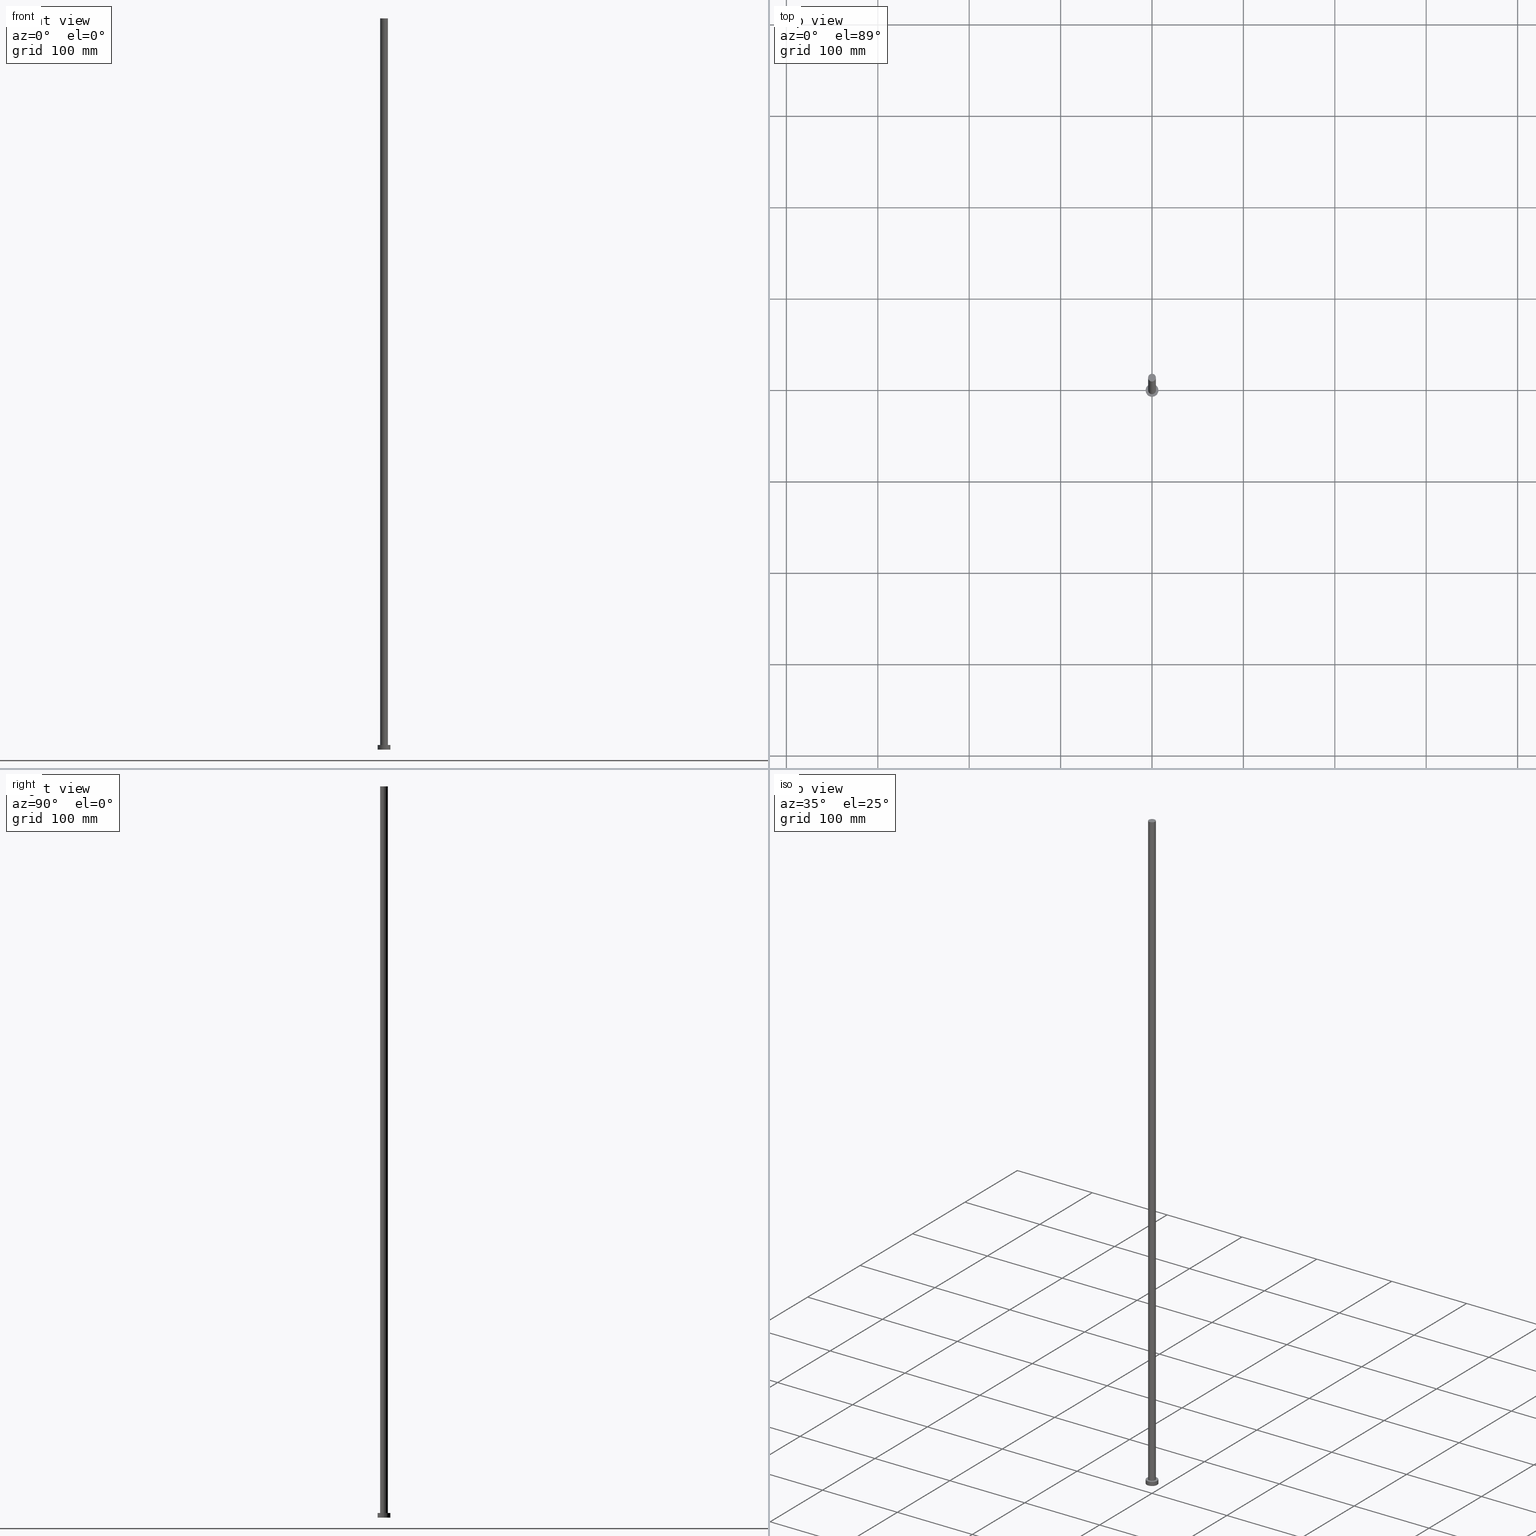
[diagram: canonical four-view strip — front | top / right | iso, engineering-drawing reading convention]
A machine part, canonical four-view strip (front | top / right | iso — engineering-drawing reading convention). The complete STEP part file that produces these views, byte-faithful:
ISO-10303-21;
HEADER;
FILE_DESCRIPTION (( 'STEP AP203' ),
    '1' );
FILE_NAME ('6261.STEP',
    '2023-02-12T11:36:54',
    ( '' ),
    ( '' ),
    'SwSTEP 2.0',
    'SolidWorks 2019',
    '' );
FILE_SCHEMA (( 'CONFIG_CONTROL_DESIGN' ));
ENDSEC;

DATA;
#1 = AXIS2_PLACEMENT_3D ( 'NONE', #227, #48, #77 ) ;
#2 = APPROVAL_DATE_TIME ( #175, #239 ) ;
#3 = ORIENTED_EDGE ( 'NONE', *, *, #217, .F. ) ;
#4 = APPROVAL_STATUS ( 'not_yet_approved' ) ;
#5 = ORIENTED_EDGE ( 'NONE', *, *, #217, .T. ) ;
#6 = VECTOR ( 'NONE', #124, 1000.000000000000000 ) ;
#7 = PERSON_AND_ORGANIZATION ( #113, #120 ) ;
#8 = EDGE_LOOP ( 'NONE', ( #66, #206 ) ) ;
#9 = CARTESIAN_POINT ( 'NONE',  ( 0.000000000000000000, 0.000000000000000000, 800.0000000000000000 ) ) ;
#10 = CARTESIAN_POINT ( 'NONE',  ( 0.000000000000000000, 0.000000000000000000, 800.0000000000000000 ) ) ;
#11 = CIRCLE ( 'NONE', #153, 4.250000000000000000 ) ;
#12 = DIRECTION ( 'NONE',  ( 1.000000000000000000, 0.000000000000000000, 0.000000000000000000 ) ) ;
#13 = DIRECTION ( 'NONE',  ( 0.000000000000000000, 0.000000000000000000, 1.000000000000000000 ) ) ;
#14 = DIRECTION ( 'NONE',  ( -1.000000000000000000, 0.000000000000000000, 0.000000000000000000 ) ) ;
#15 = CARTESIAN_POINT ( 'NONE',  ( -7.000000000000000000, 0.000000000000000000, 5.000000000000000000 ) ) ;
#16 = LOCAL_TIME ( 12, 36, 54.00000000000000000, #92 ) ;
#17 = CARTESIAN_POINT ( 'NONE',  ( 7.000000000000000000, 8.572527594031473190E-16, 0.000000000000000000 ) ) ;
#18 = AXIS2_PLACEMENT_3D ( 'NONE', #91, #156, #188 ) ;
#19 = ADVANCED_FACE ( 'NONE', ( #68 ), #204, .T. ) ;
#20 = COORDINATED_UNIVERSAL_TIME_OFFSET ( 1, 0, .AHEAD. ) ;
#21 = CALENDAR_DATE ( 2023, 12, 2 ) ;
#22 = VERTEX_POINT ( 'NONE', #247 ) ;
#23 = LOCAL_TIME ( 12, 36, 54.00000000000000000, #60 ) ;
#24 = CARTESIAN_POINT ( 'NONE',  ( 4.250000000000000000, 5.204748896376250699E-16, 5.000000000000000000 ) ) ;
#25 = VERTEX_POINT ( 'NONE', #24 ) ;
#26 = CARTESIAN_POINT ( 'NONE',  ( 0.000000000000000000, 0.000000000000000000, 0.000000000000000000 ) ) ;
#27 = CC_DESIGN_PERSON_AND_ORGANIZATION_ASSIGNMENT ( #72, #35, ( #82 ) ) ;
#28 = AXIS2_PLACEMENT_3D ( 'NONE', #73, #50, #112 ) ;
#29 = CYLINDRICAL_SURFACE ( 'NONE', #1, 4.250000000000000000 ) ;
#30 = VERTEX_POINT ( 'NONE', #225 ) ;
#31 = DIRECTION ( 'NONE',  ( 1.000000000000000000, 0.000000000000000000, 0.000000000000000000 ) ) ;
#32 = VECTOR ( 'NONE', #231, 1000.000000000000000 ) ;
#33 = EDGE_CURVE ( 'NONE', #137, #25, #172, .T. ) ;
#34 = CARTESIAN_POINT ( 'NONE',  ( 4.250000000000000000, 5.204748896376250699E-16, 800.0000000000000000 ) ) ;
#35 = PERSON_AND_ORGANIZATION_ROLE ( 'design_owner' ) ;
#36 = PRODUCT_DEFINITION ( 'NEZN�M�', '', #134, #213 ) ;
#37 = LINE ( 'NONE', #34, #32 ) ;
#38 =( GEOMETRIC_REPRESENTATION_CONTEXT ( 3 ) GLOBAL_UNCERTAINTY_ASSIGNED_CONTEXT ( ( #42 ) ) GLOBAL_UNIT_ASSIGNED_CONTEXT ( ( #210, #155, #191 ) ) REPRESENTATION_CONTEXT ( 'NONE', 'WORKASPACE' ) );
#39 = PERSON_AND_ORGANIZATION ( #113, #120 ) ;
#40 = APPROVAL_PERSON_ORGANIZATION ( #7, #239, #59 ) ;
#41 = VECTOR ( 'NONE', #95, 1000.000000000000000 ) ;
#42 = UNCERTAINTY_MEASURE_WITH_UNIT (LENGTH_MEASURE( 1.000000000000000082E-05 ), #210, 'distance_accuracy_value', 'NONE');
#43 = EDGE_CURVE ( 'NONE', #58, #242, #181, .T. ) ;
#44 = LOCAL_TIME ( 12, 36, 54.00000000000000000, #20 ) ;
#45 = FACE_BOUND ( 'NONE', #237, .T. ) ;
#46 = DIRECTION ( 'NONE',  ( 1.000000000000000000, 0.000000000000000000, -0.000000000000000000 ) ) ;
#47 = ORIENTED_EDGE ( 'NONE', *, *, #251, .T. ) ;
#48 = DIRECTION ( 'NONE',  ( -0.000000000000000000, -0.000000000000000000, -1.000000000000000000 ) ) ;
#49 = EDGE_LOOP ( 'NONE', ( #161, #81, #203, #141 ) ) ;
#50 = DIRECTION ( 'NONE',  ( -0.000000000000000000, -0.000000000000000000, -1.000000000000000000 ) ) ;
#51 = CARTESIAN_POINT ( 'NONE',  ( 0.000000000000000000, 0.000000000000000000, 0.000000000000000000 ) ) ;
#52 = AXIS2_PLACEMENT_3D ( 'NONE', #183, #71, #147 ) ;
#53 = DIRECTION ( 'NONE',  ( 1.000000000000000000, 0.000000000000000000, 0.000000000000000000 ) ) ;
#54 = EDGE_CURVE ( 'NONE', #242, #58, #79, .T. ) ;
#55 = APPROVAL_DATE_TIME ( #218, #248 ) ;
#56 = AXIS2_PLACEMENT_3D ( 'NONE', #64, #87, #169 ) ;
#57 = ADVANCED_FACE ( 'NONE', ( #168 ), #226, .F. ) ;
#58 = VERTEX_POINT ( 'NONE', #150 ) ;
#59 = APPROVAL_ROLE ( '' ) ;
#60 = COORDINATED_UNIVERSAL_TIME_OFFSET ( 1, 0, .AHEAD. ) ;
#61 = ORIENTED_EDGE ( 'NONE', *, *, #189, .F. ) ;
#62 = COORDINATED_UNIVERSAL_TIME_OFFSET ( 1, 0, .AHEAD. ) ;
#63 = CC_DESIGN_DATE_AND_TIME_ASSIGNMENT ( #142, #80, ( #36 ) ) ;
#64 = CARTESIAN_POINT ( 'NONE',  ( 0.000000000000000000, 0.000000000000000000, 5.000000000000000000 ) ) ;
#65 = LOCAL_TIME ( 12, 36, 54.00000000000000000, #62 ) ;
#66 = ORIENTED_EDGE ( 'NONE', *, *, #93, .T. ) ;
#67 = CC_DESIGN_DATE_AND_TIME_ASSIGNMENT ( #117, #178, ( #157 ) ) ;
#68 = FACE_OUTER_BOUND ( 'NONE', #8, .T. ) ;
#69 = FACE_OUTER_BOUND ( 'NONE', #49, .T. ) ;
#70 = CC_DESIGN_APPROVAL ( #248, ( #36 ) ) ;
#71 = DIRECTION ( 'NONE',  ( 0.000000000000000000, 0.000000000000000000, 1.000000000000000000 ) ) ;
#72 = PERSON_AND_ORGANIZATION ( #113, #120 ) ;
#73 = CARTESIAN_POINT ( 'NONE',  ( 0.000000000000000000, 0.000000000000000000, 5.000000000000000000 ) ) ;
#74 = CARTESIAN_POINT ( 'NONE',  ( 0.000000000000000000, 0.000000000000000000, 800.0000000000000000 ) ) ;
#75 = CIRCLE ( 'NONE', #125, 4.250000000000000000 ) ;
#76 = DIRECTION ( 'NONE',  ( 0.000000000000000000, 0.000000000000000000, 1.000000000000000000 ) ) ;
#77 = DIRECTION ( 'NONE',  ( -1.000000000000000000, 0.000000000000000000, 0.000000000000000000 ) ) ;
#78 = ORIENTED_EDGE ( 'NONE', *, *, #189, .T. ) ;
#79 = CIRCLE ( 'NONE', #52, 7.000000000000000000 ) ;
#80 = DATE_TIME_ROLE ( 'creation_date' ) ;
#81 = ORIENTED_EDGE ( 'NONE', *, *, #93, .F. ) ;
#82 = PRODUCT ( '6261', '6261', '', ( #232 ) ) ;
#83 = ORIENTED_EDGE ( 'NONE', *, *, #205, .F. ) ;
#84 = CARTESIAN_POINT ( 'NONE',  ( 0.000000000000000000, 0.000000000000000000, 800.0000000000000000 ) ) ;
#85 = AXIS2_PLACEMENT_3D ( 'NONE', #51, #254, #173 ) ;
#86 = CARTESIAN_POINT ( 'NONE',  ( -4.250000000000000000, 0.000000000000000000, 800.0000000000000000 ) ) ;
#87 = DIRECTION ( 'NONE',  ( 0.000000000000000000, 0.000000000000000000, 1.000000000000000000 ) ) ;
#88 = DIRECTION ( 'NONE',  ( 1.000000000000000000, 0.000000000000000000, -0.000000000000000000 ) ) ;
#89 = CC_DESIGN_PERSON_AND_ORGANIZATION_ASSIGNMENT ( #118, #199, ( #157 ) ) ;
#90 = AXIS2_PLACEMENT_3D ( 'NONE', #123, #13, #243 ) ;
#91 = CARTESIAN_POINT ( 'NONE',  ( 0.000000000000000000, 0.000000000000000000, 5.000000000000000000 ) ) ;
#92 = COORDINATED_UNIVERSAL_TIME_OFFSET ( 1, 0, .AHEAD. ) ;
#93 = EDGE_CURVE ( 'NONE', #30, #22, #11, .T. ) ;
#94 = CARTESIAN_POINT ( 'NONE',  ( -7.000000000000000000, 0.000000000000000000, 0.000000000000000000 ) ) ;
#95 = DIRECTION ( 'NONE',  ( -0.000000000000000000, -0.000000000000000000, -1.000000000000000000 ) ) ;
#96 = FACE_OUTER_BOUND ( 'NONE', #100, .T. ) ;
#97 = PERSON_AND_ORGANIZATION ( #113, #120 ) ;
#98 = CIRCLE ( 'NONE', #85, 7.000000000000000000 ) ;
#99 = ADVANCED_FACE ( 'NONE', ( #69 ), #224, .T. ) ;
#100 = EDGE_LOOP ( 'NONE', ( #143, #187, #78, #165 ) ) ;
#101 = ORIENTED_EDGE ( 'NONE', *, *, #174, .T. ) ;
#102 = ORIENTED_EDGE ( 'NONE', *, *, #184, .F. ) ;
#103 = EDGE_CURVE ( 'NONE', #242, #146, #207, .T. ) ;
#104 = ORIENTED_EDGE ( 'NONE', *, *, #251, .F. ) ;
#105 = DIRECTION ( 'NONE',  ( 1.000000000000000000, 0.000000000000000000, -0.000000000000000000 ) ) ;
#106 = DIRECTION ( 'NONE',  ( 0.000000000000000000, 0.000000000000000000, 1.000000000000000000 ) ) ;
#107 = DIRECTION ( 'NONE',  ( -0.000000000000000000, -0.000000000000000000, -1.000000000000000000 ) ) ;
#108 = ADVANCED_FACE ( 'NONE', ( #45, #209 ), #149, .T. ) ;
#109 = CLOSED_SHELL ( 'NONE', ( #122, #132, #211, #108, #57, #99, #19 ) ) ;
#110 = FACE_OUTER_BOUND ( 'NONE', #249, .T. ) ;
#111 = EDGE_CURVE ( 'NONE', #30, #137, #121, .T. ) ;
#112 = DIRECTION ( 'NONE',  ( -1.000000000000000000, 0.000000000000000000, 0.000000000000000000 ) ) ;
#113 = PERSON ( 'NEUR�EN�', 'NEUR�EN�', 'NEUR�EN�', ('NEUR�EN�'), ('NEUR�EN�'), ('NEUR�EN�') ) ;
#114 = CYLINDRICAL_SURFACE ( 'NONE', #18, 7.000000000000000000 ) ;
#115 = APPROVAL_PERSON_ORGANIZATION ( #230, #248, #214 ) ;
#116 = COORDINATED_UNIVERSAL_TIME_OFFSET ( 1, 0, .AHEAD. ) ;
#117 = DATE_AND_TIME ( #119, #65 ) ;
#118 = PERSON_AND_ORGANIZATION ( #113, #120 ) ;
#119 = CALENDAR_DATE ( 2023, 12, 2 ) ;
#120 = ORGANIZATION ( 'NEUR�EN�', 'NEUR�EN�', '' ) ;
#121 = LINE ( 'NONE', #86, #6 ) ;
#122 = ADVANCED_FACE ( 'NONE', ( #246 ), #29, .T. ) ;
#123 = CARTESIAN_POINT ( 'NONE',  ( 0.000000000000000000, 0.000000000000000000, 5.000000000000000000 ) ) ;
#124 = DIRECTION ( 'NONE',  ( -0.000000000000000000, -0.000000000000000000, -1.000000000000000000 ) ) ;
#125 = AXIS2_PLACEMENT_3D ( 'NONE', #234, #76, #53 ) ;
#126 = PRODUCT_RELATED_PRODUCT_CATEGORY ( 'detail', '', ( #82 ) ) ;
#127 = DIRECTION ( 'NONE',  ( 0.000000000000000000, 0.000000000000000000, 1.000000000000000000 ) ) ;
#128 = CARTESIAN_POINT ( 'NONE',  ( 7.000000000000000000, 8.572527594031473190E-16, 5.000000000000000000 ) ) ;
#129 = APPROVAL_STATUS ( 'not_yet_approved' ) ;
#130 = DIRECTION ( 'NONE',  ( 0.000000000000000000, 0.000000000000000000, 1.000000000000000000 ) ) ;
#131 = DIRECTION ( 'NONE',  ( 1.000000000000000000, 0.000000000000000000, 0.000000000000000000 ) ) ;
#132 = ADVANCED_FACE ( 'NONE', ( #96 ), #114, .T. ) ;
#133 = SECURITY_CLASSIFICATION_LEVEL ( 'unclassified' ) ;
#134 = PRODUCT_DEFINITION_FORMATION_WITH_SPECIFIED_SOURCE ( 'LIBOVOLN�', '', #82, .NOT_KNOWN. ) ;
#135 = APPROVAL_ROLE ( '' ) ;
#136 = CALENDAR_DATE ( 2023, 12, 2 ) ;
#137 = VERTEX_POINT ( 'NONE', #197 ) ;
#138 = CC_DESIGN_PERSON_AND_ORGANIZATION_ASSIGNMENT ( #236, #159, ( #36 ) ) ;
#139 = CALENDAR_DATE ( 2023, 12, 2 ) ;
#140 = APPROVAL_PERSON_ORGANIZATION ( #97, #228, #135 ) ;
#141 = ORIENTED_EDGE ( 'NONE', *, *, #33, .T. ) ;
#142 = DATE_AND_TIME ( #21, #145 ) ;
#143 = ORIENTED_EDGE ( 'NONE', *, *, #43, .F. ) ;
#144 = DIRECTION ( 'NONE',  ( 0.000000000000000000, 0.000000000000000000, 1.000000000000000000 ) ) ;
#145 = LOCAL_TIME ( 12, 36, 54.00000000000000000, #116 ) ;
#146 = VERTEX_POINT ( 'NONE', #94 ) ;
#147 = DIRECTION ( 'NONE',  ( 1.000000000000000000, 0.000000000000000000, 0.000000000000000000 ) ) ;
#148 = MANIFOLD_SOLID_BREP ( 'P�idat vysunut�m3', #109 ) ;
#149 = PLANE ( 'NONE',  #154 ) ;
#150 = CARTESIAN_POINT ( 'NONE',  ( 7.000000000000000000, 8.572527594031473190E-16, 5.000000000000000000 ) ) ;
#151 = APPLICATION_PROTOCOL_DEFINITION ( 'international standard', 'config_control_design', 1994, #193 ) ;
#152 = DIRECTION ( 'NONE',  ( 1.000000000000000000, 0.000000000000000000, 0.000000000000000000 ) ) ;
#153 = AXIS2_PLACEMENT_3D ( 'NONE', #10, #185, #12 ) ;
#154 = AXIS2_PLACEMENT_3D ( 'NONE', #167, #106, #88 ) ;
#155 =( NAMED_UNIT ( * ) PLANE_ANGLE_UNIT ( ) SI_UNIT ( $, .RADIAN. ) );
#156 = DIRECTION ( 'NONE',  ( -0.000000000000000000, -0.000000000000000000, -1.000000000000000000 ) ) ;
#157 = SECURITY_CLASSIFICATION ( '', '', #133 ) ;
#158 = ORIENTED_EDGE ( 'NONE', *, *, #33, .F. ) ;
#159 = PERSON_AND_ORGANIZATION_ROLE ( 'creator' ) ;
#160 = CC_DESIGN_PERSON_AND_ORGANIZATION_ASSIGNMENT ( #220, #162, ( #134 ) ) ;
#161 = ORIENTED_EDGE ( 'NONE', *, *, #174, .F. ) ;
#162 = PERSON_AND_ORGANIZATION_ROLE ( 'creator' ) ;
#163 = AXIS2_PLACEMENT_3D ( 'NONE', #171, #252, #131 ) ;
#164 = EDGE_LOOP ( 'NONE', ( #3, #61 ) ) ;
#165 = ORIENTED_EDGE ( 'NONE', *, *, #103, .F. ) ;
#166 = CARTESIAN_POINT ( 'NONE',  ( -7.000000000000000000, 0.000000000000000000, 5.000000000000000000 ) ) ;
#167 = CARTESIAN_POINT ( 'NONE',  ( 0.000000000000000000, 0.000000000000000000, 5.000000000000000000 ) ) ;
#168 = FACE_OUTER_BOUND ( 'NONE', #164, .T. ) ;
#169 = DIRECTION ( 'NONE',  ( 1.000000000000000000, 0.000000000000000000, 0.000000000000000000 ) ) ;
#170 = APPLICATION_PROTOCOL_DEFINITION ( 'international standard', 'config_control_design', 1994, #212 ) ;
#171 = CARTESIAN_POINT ( 'NONE',  ( 0.000000000000000000, 0.000000000000000000, 0.000000000000000000 ) ) ;
#172 = CIRCLE ( 'NONE', #90, 4.250000000000000000 ) ;
#173 = DIRECTION ( 'NONE',  ( 1.000000000000000000, 0.000000000000000000, 0.000000000000000000 ) ) ;
#174 = EDGE_CURVE ( 'NONE', #22, #25, #37, .T. ) ;
#175 = DATE_AND_TIME ( #139, #23 ) ;
#176 = CC_DESIGN_APPROVAL ( #239, ( #134 ) ) ;
#177 = ORIENTED_EDGE ( 'NONE', *, *, #111, .F. ) ;
#178 = DATE_TIME_ROLE ( 'classification_date' ) ;
#179 = PERSON_AND_ORGANIZATION_ROLE ( 'design_supplier' ) ;
#180 = VERTEX_POINT ( 'NONE', #17 ) ;
#181 = CIRCLE ( 'NONE', #56, 7.000000000000000000 ) ;
#182 = EDGE_LOOP ( 'NONE', ( #83, #101, #47, #177 ) ) ;
#183 = CARTESIAN_POINT ( 'NONE',  ( 0.000000000000000000, 0.000000000000000000, 5.000000000000000000 ) ) ;
#184 = EDGE_CURVE ( 'NONE', #58, #180, #195, .T. ) ;
#185 = DIRECTION ( 'NONE',  ( 0.000000000000000000, 0.000000000000000000, 1.000000000000000000 ) ) ;
#186 = ORIENTED_EDGE ( 'NONE', *, *, #43, .T. ) ;
#187 = ORIENTED_EDGE ( 'NONE', *, *, #184, .T. ) ;
#188 = DIRECTION ( 'NONE',  ( -1.000000000000000000, 0.000000000000000000, 0.000000000000000000 ) ) ;
#189 = EDGE_CURVE ( 'NONE', #180, #146, #98, .T. ) ;
#190 = CC_DESIGN_APPROVAL ( #228, ( #157 ) ) ;
#191 =( NAMED_UNIT ( * ) SI_UNIT ( $, .STERADIAN. ) SOLID_ANGLE_UNIT ( ) );
#192 = PRODUCT_DEFINITION_SHAPE ( 'NONE', 'NONE',  #36 ) ;
#193 = APPLICATION_CONTEXT ( 'configuration controlled 3d designs of mechanical parts and assemblies' ) ;
#194 = CC_DESIGN_PERSON_AND_ORGANIZATION_ASSIGNMENT ( #39, #179, ( #134 ) ) ;
#195 = LINE ( 'NONE', #128, #41 ) ;
#196 = VECTOR ( 'NONE', #245, 1000.000000000000000 ) ;
#197 = CARTESIAN_POINT ( 'NONE',  ( -4.250000000000000000, 0.000000000000000000, 5.000000000000000000 ) ) ;
#198 = APPROVAL_DATE_TIME ( #241, #228 ) ;
#199 = PERSON_AND_ORGANIZATION_ROLE ( 'classification_officer' ) ;
#200 = EDGE_LOOP ( 'NONE', ( #219, #186 ) ) ;
#201 = SHAPE_DEFINITION_REPRESENTATION ( #192, #222 ) ;
#202 = AXIS2_PLACEMENT_3D ( 'NONE', #9, #127, #46 ) ;
#203 = ORIENTED_EDGE ( 'NONE', *, *, #111, .T. ) ;
#204 = PLANE ( 'NONE',  #202 ) ;
#205 = EDGE_CURVE ( 'NONE', #22, #30, #244, .T. ) ;
#206 = ORIENTED_EDGE ( 'NONE', *, *, #205, .T. ) ;
#207 = LINE ( 'NONE', #166, #196 ) ;
#208 = AXIS2_PLACEMENT_3D ( 'NONE', #74, #233, #31 ) ;
#209 = FACE_OUTER_BOUND ( 'NONE', #200, .T. ) ;
#210 =( LENGTH_UNIT ( ) NAMED_UNIT ( * ) SI_UNIT ( .MILLI., .METRE. ) );
#211 = ADVANCED_FACE ( 'NONE', ( #110 ), #215, .T. ) ;
#212 = APPLICATION_CONTEXT ( 'configuration controlled 3d designs of mechanical parts and assemblies' ) ;
#213 = DESIGN_CONTEXT ( 'detailed design', #193, 'design' ) ;
#214 = APPROVAL_ROLE ( '' ) ;
#215 = CYLINDRICAL_SURFACE ( 'NONE', #28, 7.000000000000000000 ) ;
#216 = AXIS2_PLACEMENT_3D ( 'NONE', #84, #107, #14 ) ;
#217 = EDGE_CURVE ( 'NONE', #146, #180, #240, .T. ) ;
#218 = DATE_AND_TIME ( #255, #16 ) ;
#219 = ORIENTED_EDGE ( 'NONE', *, *, #54, .T. ) ;
#220 = PERSON_AND_ORGANIZATION ( #113, #120 ) ;
#221 = ORIENTED_EDGE ( 'NONE', *, *, #54, .F. ) ;
#222 = ADVANCED_BREP_SHAPE_REPRESENTATION ( '6261', ( #148, #250 ), #38 ) ;
#223 = CC_DESIGN_SECURITY_CLASSIFICATION ( #157, ( #134 ) ) ;
#224 = CYLINDRICAL_SURFACE ( 'NONE', #216, 4.250000000000000000 ) ;
#225 = CARTESIAN_POINT ( 'NONE',  ( -4.250000000000000000, 0.000000000000000000, 800.0000000000000000 ) ) ;
#226 = PLANE ( 'NONE',  #235 ) ;
#227 = CARTESIAN_POINT ( 'NONE',  ( 0.000000000000000000, 0.000000000000000000, 800.0000000000000000 ) ) ;
#228 = APPROVAL ( #4, 'NEUR�EN�' ) ;
#229 = ORIENTED_EDGE ( 'NONE', *, *, #103, .T. ) ;
#230 = PERSON_AND_ORGANIZATION ( #113, #120 ) ;
#231 = DIRECTION ( 'NONE',  ( -0.000000000000000000, -0.000000000000000000, -1.000000000000000000 ) ) ;
#232 = MECHANICAL_CONTEXT ( 'NONE', #212, 'mechanical' ) ;
#233 = DIRECTION ( 'NONE',  ( 0.000000000000000000, 0.000000000000000000, 1.000000000000000000 ) ) ;
#234 = CARTESIAN_POINT ( 'NONE',  ( 0.000000000000000000, 0.000000000000000000, 5.000000000000000000 ) ) ;
#235 = AXIS2_PLACEMENT_3D ( 'NONE', #26, #144, #105 ) ;
#236 = PERSON_AND_ORGANIZATION ( #113, #120 ) ;
#237 = EDGE_LOOP ( 'NONE', ( #158, #104 ) ) ;
#238 = APPROVAL_STATUS ( 'not_yet_approved' ) ;
#239 = APPROVAL ( #238, 'NEUR�EN�' ) ;
#240 = CIRCLE ( 'NONE', #163, 7.000000000000000000 ) ;
#241 = DATE_AND_TIME ( #136, #44 ) ;
#242 = VERTEX_POINT ( 'NONE', #15 ) ;
#243 = DIRECTION ( 'NONE',  ( 1.000000000000000000, 0.000000000000000000, 0.000000000000000000 ) ) ;
#244 = CIRCLE ( 'NONE', #208, 4.250000000000000000 ) ;
#245 = DIRECTION ( 'NONE',  ( -0.000000000000000000, -0.000000000000000000, -1.000000000000000000 ) ) ;
#246 = FACE_OUTER_BOUND ( 'NONE', #182, .T. ) ;
#247 = CARTESIAN_POINT ( 'NONE',  ( 4.250000000000000000, 5.204748896376250699E-16, 800.0000000000000000 ) ) ;
#248 = APPROVAL ( #129, 'NEUR�EN�' ) ;
#249 = EDGE_LOOP ( 'NONE', ( #102, #221, #229, #5 ) ) ;
#250 = AXIS2_PLACEMENT_3D ( 'NONE', #253, #130, #152 ) ;
#251 = EDGE_CURVE ( 'NONE', #25, #137, #75, .T. ) ;
#252 = DIRECTION ( 'NONE',  ( 0.000000000000000000, 0.000000000000000000, 1.000000000000000000 ) ) ;
#253 = CARTESIAN_POINT ( 'NONE',  ( 0.000000000000000000, 0.000000000000000000, 0.000000000000000000 ) ) ;
#254 = DIRECTION ( 'NONE',  ( 0.000000000000000000, 0.000000000000000000, 1.000000000000000000 ) ) ;
#255 = CALENDAR_DATE ( 2023, 12, 2 ) ;
ENDSEC;
END-ISO-10303-21;
